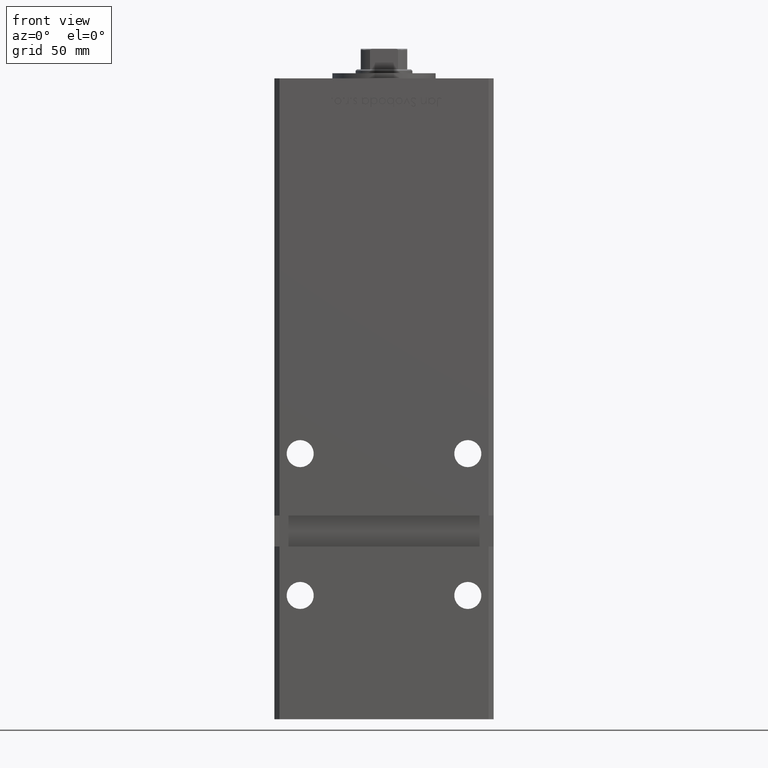
[diagram: clean part render]
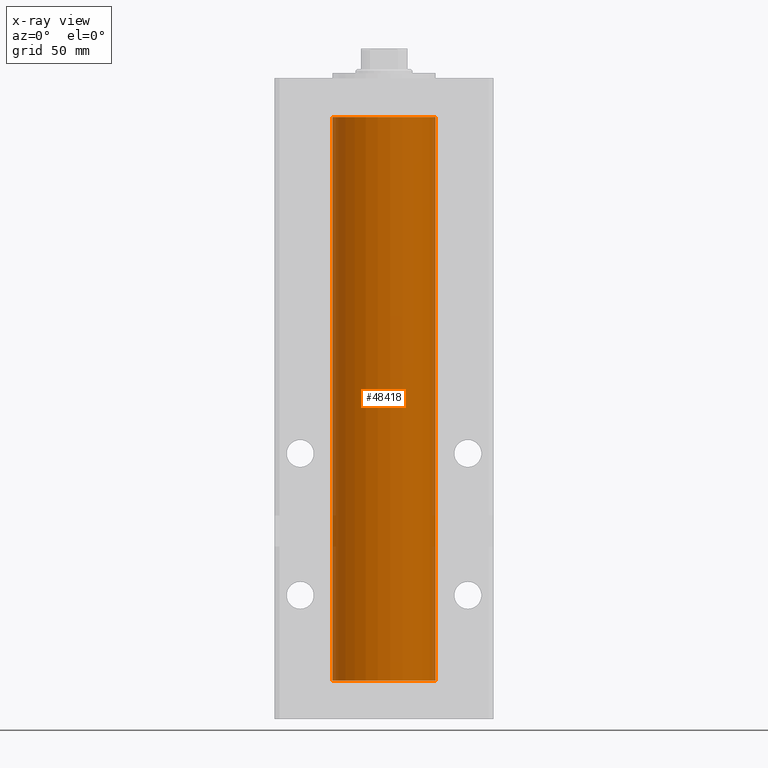
[diagram: x-ray — body ghosted, one internal face saturated and labeled with its STEP entity id]
A machine part, front view, then the same camera in x-ray: the body is ghosted and one INTERNAL B-rep face — a face not visible from any outside direction — is saturated and labeled: STEP entity #48418.
In plain terms, the highlighted cylindrical surface (partial cylindrical patch) has radius 20 mm, axis along (-0, -0, -1).
Its self-contained STEP definition (entity closure, byte-faithful):
#552 = CARTESIAN_POINT ( 'NONE',  ( -20.00000000000000000, 0.000000000000000000, 218.5000000000000000 ) ) ;
#1929 = ORIENTED_EDGE ( 'NONE', *, *, #44354, .T. ) ;
#2391 = EDGE_CURVE ( 'NONE', #39740, #46162, #29682, .T. ) ;
#3501 = CYLINDRICAL_SURFACE ( 'NONE', #31577, 20.00000000000000000 ) ;
#5771 = LINE ( 'NONE', #38819, #10873 ) ;
#6835 = EDGE_LOOP ( 'NONE', ( #13968, #1929, #11272, #41503 ) ) ;
#6956 = DIRECTION ( 'NONE',  ( -0.000000000000000000, 0.000000000000000000, 1.000000000000000000 ) ) ;
#7760 = CARTESIAN_POINT ( 'NONE',  ( -20.00000000000000000, 0.000000000000000000, 0.000000000000000000 ) ) ;
#10873 = VECTOR ( 'NONE', #50925, 1000.000000000000000 ) ;
#11272 = ORIENTED_EDGE ( 'NONE', *, *, #21736, .F. ) ;
#11948 = VECTOR ( 'NONE', #38276, 1000.000000000000000 ) ;
#13968 = ORIENTED_EDGE ( 'NONE', *, *, #39089, .T. ) ;
#14171 = CARTESIAN_POINT ( 'NONE',  ( 20.00000000000000000, 2.449293598294706513E-15, 0.000000000000000000 ) ) ;
#15571 = DIRECTION ( 'NONE',  ( -1.000000000000000000, 0.000000000000000000, 0.000000000000000000 ) ) ;
#15839 = VERTEX_POINT ( 'NONE', #14171 ) ;
#17359 = AXIS2_PLACEMENT_3D ( 'NONE', #47887, #31747, #39284 ) ;
#21736 = EDGE_CURVE ( 'NONE', #46162, #15839, #35365, .T. ) ;
#23580 = CARTESIAN_POINT ( 'NONE',  ( 0.000000000000000000, 0.000000000000000000, 218.5000000000000000 ) ) ;
#28486 = VERTEX_POINT ( 'NONE', #40949 ) ;
#29682 = LINE ( 'NONE', #46084, #11948 ) ;
#31577 = AXIS2_PLACEMENT_3D ( 'NONE', #52143, #40047, #15571 ) ;
#31700 = FACE_OUTER_BOUND ( 'NONE', #6835, .T. ) ;
#31747 = DIRECTION ( 'NONE',  ( -0.000000000000000000, 0.000000000000000000, 1.000000000000000000 ) ) ;
#35365 = CIRCLE ( 'NONE', #17359, 20.00000000000000000 ) ;
#38276 = DIRECTION ( 'NONE',  ( -0.000000000000000000, -0.000000000000000000, -1.000000000000000000 ) ) ;
#38819 = CARTESIAN_POINT ( 'NONE',  ( 20.00000000000000000, 2.449293598294706513E-15, 218.5000000000000000 ) ) ;
#39089 = EDGE_CURVE ( 'NONE', #39740, #28486, #39194, .T. ) ;
#39194 = CIRCLE ( 'NONE', #40888, 20.00000000000000000 ) ;
#39284 = DIRECTION ( 'NONE',  ( 1.000000000000000000, 0.000000000000000000, 0.000000000000000000 ) ) ;
#39736 = DIRECTION ( 'NONE',  ( 1.000000000000000000, 0.000000000000000000, 0.000000000000000000 ) ) ;
#39740 = VERTEX_POINT ( 'NONE', #552 ) ;
#40047 = DIRECTION ( 'NONE',  ( -0.000000000000000000, -0.000000000000000000, -1.000000000000000000 ) ) ;
#40888 = AXIS2_PLACEMENT_3D ( 'NONE', #23580, #6956, #39736 ) ;
#40949 = CARTESIAN_POINT ( 'NONE',  ( 20.00000000000000000, 2.449293598294706513E-15, 218.5000000000000000 ) ) ;
#41503 = ORIENTED_EDGE ( 'NONE', *, *, #2391, .F. ) ;
#44354 = EDGE_CURVE ( 'NONE', #28486, #15839, #5771, .T. ) ;
#46084 = CARTESIAN_POINT ( 'NONE',  ( -20.00000000000000000, 0.000000000000000000, 218.5000000000000000 ) ) ;
#46162 = VERTEX_POINT ( 'NONE', #7760 ) ;
#47887 = CARTESIAN_POINT ( 'NONE',  ( 0.000000000000000000, 0.000000000000000000, 0.000000000000000000 ) ) ;
#48418 = ADVANCED_FACE ( 'NONE', ( #31700 ), #3501, .F. ) ;
#50925 = DIRECTION ( 'NONE',  ( -0.000000000000000000, -0.000000000000000000, -1.000000000000000000 ) ) ;
#52143 = CARTESIAN_POINT ( 'NONE',  ( 0.000000000000000000, 0.000000000000000000, 218.5000000000000000 ) ) ;